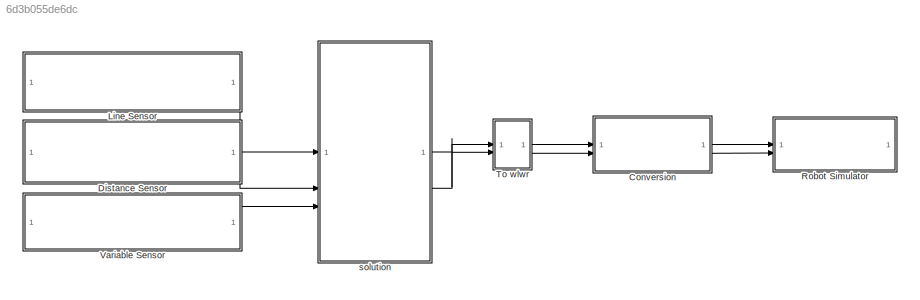
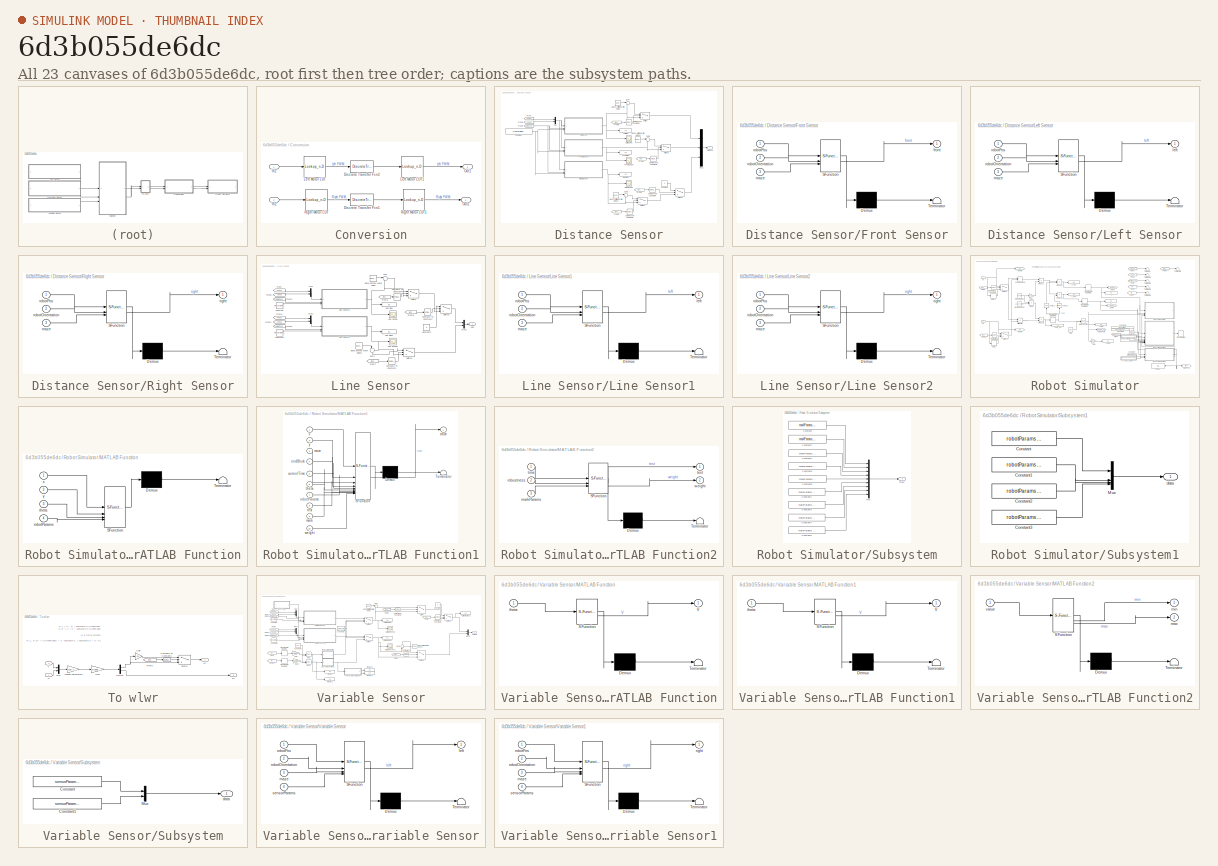
[diagram: thumbnail index - all 23 canvases of the model, root first then tree order]
MODEL slx_6d3b055de6dc
KIND model
CONFIG AbsTol = auto
CONFIG EnableMultiTasking = off
CONFIG FixedStep = 0.01
CONFIG MaxStep = auto
CONFIG MinStep = auto
CONFIG RelTol = 1e-3
CONFIG SampleTimeConstraint = Unconstrained
CONFIG SolverName = FixedStepDiscrete
CONFIG StartTime = 0.0
CONFIG StopTime = inf
BLOCK [SubSystem] Conversion
BLOCK [DiscreteTransferFcn] Conversion/Discrete Transfer Fcn1
  Denominator = [1 -0.97]
  InputPortMap = u0
  Numerator = [0.03]
BLOCK [DiscreteTransferFcn] Conversion/Discrete Transfer Fcn2
  Denominator = [1 -0.97]
  InputPortMap = u0
  Numerator = [0.03]
BLOCK [Inport] Conversion/In1
BLOCK [Inport] Conversion/In2
  Port = 2
BLOCK [Lookup_n-D] Conversion/Left Motor LUT
  BreakpointsForDimension1 = WheelSpeed
  ExtrapMethod = Clip
  InputPortMap = u0
  InternalRulePriority = Speed
  InterpMethod = Nearest
  NumberOfTableDimensions = 1
  RndMeth = Simplest
  Table = InputPWM
BLOCK [Lookup_n-D] Conversion/Left Motor LUT1
  BreakpointsForDimension1 = InputPWM
  ExtrapMethod = Clip
  InputPortMap = u0
  InternalRulePriority = Speed
  InterpMethod = Nearest
  NumberOfTableDimensions = 1
  RndMeth = Simplest
  Table = WheelSpeed
BLOCK [Outport] Conversion/Out1
BLOCK [Outport] Conversion/Out2
  Port = 2
BLOCK [Lookup_n-D] Conversion/Right Motor LUT
  BreakpointsForDimension1 = WheelSpeed
  ExtrapMethod = Clip
  InputPortMap = u0
  InternalRulePriority = Speed
  InterpMethod = Nearest
  NumberOfTableDimensions = 1
  RndMeth = Simplest
  Table = InputPWM
BLOCK [Lookup_n-D] Conversion/Right Motor LUT1
  BreakpointsForDimension1 = InputPWM
  ExtrapMethod = Clip
  InputPortMap = u0
  InternalRulePriority = Speed
  InterpMethod = Nearest
  NumberOfTableDimensions = 1
  RndMeth = Simplest
  Table = WheelSpeed
BLOCK [SubSystem] Distance Sensor
  AncestorBlock = mobileRoboticsTrainingLib/Line Sensor
BLOCK [Reference] Distance Sensor/Band-Limited White Noise  REF=simulink/Sources/Band-Limited
White Noise
  SourceBlock = simulink/Sources/Band-Limited\nWhite Noise
  SourceType = Band-Limited White Noise.
BLOCK [Reference] Distance Sensor/Band-Limited White Noise1  REF=simulink/Sources/Band-Limited
White Noise
  SourceBlock = simulink/Sources/Band-Limited\nWhite Noise
  SourceType = Band-Limited White Noise.
BLOCK [Reference] Distance Sensor/Band-Limited White Noise2  REF=simulink/Sources/Band-Limited
White Noise
  SourceBlock = simulink/Sources/Band-Limited\nWhite Noise
  SourceType = Band-Limited White Noise.
BLOCK [Reference] Distance Sensor/Compare To Constant1  REF=simulink/Logic and Bit
Operations/Compare
To Constant
  SourceBlock = simulink/Logic and Bit\nOperations/Compare\nTo Constant
  SourceType = Compare To Constant
BLOCK [Reference] Distance Sensor/Compare To Constant2  REF=simulink/Logic and Bit
Operations/Compare
To Constant
  SourceBlock = simulink/Logic and Bit\nOperations/Compare\nTo Constant
  SourceType = Compare To Constant
BLOCK [Reference] Distance Sensor/Compare To Constant3  REF=simulink/Logic and Bit
Operations/Compare
To Constant
  SourceBlock = simulink/Logic and Bit\nOperations/Compare\nTo Constant
  SourceType = Compare To Constant
BLOCK [Reference] Distance Sensor/Compare To Constant4  REF=simulink/Logic and Bit
Operations/Compare
To Constant
  SourceBlock = simulink/Logic and Bit\nOperations/Compare\nTo Constant
  SourceType = Compare To Constant
BLOCK [Constant] Distance Sensor/Constant
  Value = mapVariable.lineFollowingMap
BLOCK [Constant] Distance Sensor/Constant1
  Value = 0
BLOCK [Outport] Distance Sensor/Distance
BLOCK [From] Distance Sensor/From
  GotoTag = xPose
  TagVisibility = global
BLOCK [From] Distance Sensor/From1
  GotoTag = yPose
  TagVisibility = global
BLOCK [From] Distance Sensor/From2
  GotoTag = thetaPose
  TagVisibility = global
BLOCK [From] Distance Sensor/From3
  GotoTag = test
  TagVisibility = global
BLOCK [From] Distance Sensor/From4
  GotoTag = test
  TagVisibility = global
BLOCK [From] Distance Sensor/From5
  GotoTag = test
  TagVisibility = global
BLOCK [From] Distance Sensor/From6
  GotoTag = test
  TagVisibility = global
BLOCK [Display] Distance Sensor/Front Disp
  Decimation = 1
BLOCK [Scope] Distance Sensor/Front Scope
  Floating = off
  NumInputPorts = 1
  ScopeSpecificationString = Simulink.scopes.TimeScopeBlockCfg('CurrentConfiguration', extmgr.ConfigurationSet(extmgr.Configuration('Core','General UI',true),extmgr.Configuration('Core','Source UI',true),extmgr.Configuration('Sources','WiredSimulink',true,'DataLoggingVariableName','ScopeData1'),extmgr.Configuration('Visuals','Time Domain',true,'SerializedDisplays',{struct('MinYLimReal','11.82933','MaxYLimReal','1442.24519','Y...<+1499ch>
BLOCK [SubSystem] Distance Sensor/Front Sensor
  ErrorFcn = Stateflow.Translate.translate
  PermitHierarchicalResolution = ExplicitOnly
  SFBlockType = MATLAB Function
  TreatAsAtomicUnit = on
BLOCK [Demux] Distance Sensor/Front Sensor/ Demux 
  Outputs = 1
BLOCK [S-Function] Distance Sensor/Front Sensor/ SFunction 
  EnableBusSupport = on
  FunctionName = sf_sfun
  PortCounts = [3 2]
  SFcnIsStateOwnerBlock = off
  SFunctionDeploymentMode = off
  Tag = Stateflow S-Function 3
BLOCK [Terminator] Distance Sensor/Front Sensor/ Terminator 
BLOCK [Outport] Distance Sensor/Front Sensor/front
BLOCK [Inport] Distance Sensor/Front Sensor/maze
  Port = 3
BLOCK [Inport] Distance Sensor/Front Sensor/robotOrientation
  Port = 2
BLOCK [Inport] Distance Sensor/Front Sensor/robotPos
BLOCK [Display] Distance Sensor/Left Disp
  Decimation = 1
BLOCK [Scope] Distance Sensor/Left Scope
  Floating = off
  NumInputPorts = 1
  ScopeSpecificationString = Simulink.scopes.TimeScopeBlockCfg('CurrentConfiguration', extmgr.ConfigurationSet(extmgr.Configuration('Core','General UI',true),extmgr.Configuration('Core','Source UI',true),extmgr.Configuration('Sources','WiredSimulink',true),extmgr.Configuration('Visuals','Time Domain',true,'SerializedDisplays',{struct('MinYLimReal','12.22905','MaxYLimReal','111.97455','YLabelReal','','MinYLimMag','12.22905','M...<+1457ch>
BLOCK [SubSystem] Distance Sensor/Left Sensor
  ErrorFcn = Stateflow.Translate.translate
  PermitHierarchicalResolution = ExplicitOnly
  SFBlockType = MATLAB Function
  TreatAsAtomicUnit = on
BLOCK [Demux] Distance Sensor/Left Sensor/ Demux 
  Outputs = 1
BLOCK [S-Function] Distance Sensor/Left Sensor/ SFunction 
  EnableBusSupport = on
  FunctionName = sf_sfun
  PortCounts = [3 2]
  SFcnIsStateOwnerBlock = off
  SFunctionDeploymentMode = off
  Tag = Stateflow S-Function 2
BLOCK [Terminator] Distance Sensor/Left Sensor/ Terminator 
BLOCK [Outport] Distance Sensor/Left Sensor/left
BLOCK [Inport] Distance Sensor/Left Sensor/maze
  Port = 3
BLOCK [Inport] Distance Sensor/Left Sensor/robotOrientation
  Port = 2
BLOCK [Inport] Distance Sensor/Left Sensor/robotPos
BLOCK [Mux] Distance Sensor/Mux
  DisplayOption = bar
  Inputs = 2
BLOCK [Mux] Distance Sensor/Mux1
  DisplayOption = bar
  Inputs = 3
BLOCK [Display] Distance Sensor/Right Disp
  Decimation = 1
BLOCK [Scope] Distance Sensor/Right Scope
  Floating = off
  NumInputPorts = 1
  ScopeSpecificationString = Simulink.scopes.TimeScopeBlockCfg('CurrentConfiguration', extmgr.ConfigurationSet(extmgr.Configuration('Core','General UI',true),extmgr.Configuration('Core','Source UI',true),extmgr.Configuration('Sources','WiredSimulink',true,'DataLoggingVariableName','ScopeData2'),extmgr.Configuration('Visuals','Time Domain',true,'SerializedDisplays',{struct('MinYLimReal','10.84852','MaxYLimReal','872.36328','YL...<+1497ch>
BLOCK [SubSystem] Distance Sensor/Right Sensor
  ErrorFcn = Stateflow.Translate.translate
  PermitHierarchicalResolution = ExplicitOnly
  SFBlockType = MATLAB Function
  TreatAsAtomicUnit = on
BLOCK [Demux] Distance Sensor/Right Sensor/ Demux 
  Outputs = 1
BLOCK [S-Function] Distance Sensor/Right Sensor/ SFunction 
  EnableBusSupport = on
  FunctionName = sf_sfun
  PortCounts = [3 2]
  SFcnIsStateOwnerBlock = off
  SFunctionDeploymentMode = off
  Tag = Stateflow S-Function 4
BLOCK [Terminator] Distance Sensor/Right Sensor/ Terminator 
BLOCK [Inport] Distance Sensor/Right Sensor/maze
  Port = 3
BLOCK [Outport] Distance Sensor/Right Sensor/right
BLOCK [Inport] Distance Sensor/Right Sensor/robotOrientation
  Port = 2
BLOCK [Inport] Distance Sensor/Right Sensor/robotPos
BLOCK [Sum] Distance Sensor/Sum
  Inputs = |++
BLOCK [Sum] Distance Sensor/Sum1
  Inputs = |++
BLOCK [Sum] Distance Sensor/Sum2
  Inputs = |++
BLOCK [Switch] Distance Sensor/Switch
  InputSameDT = off
  SaturateOnIntegerOverflow = off
  Threshold = 1
BLOCK [Switch] Distance Sensor/Switch1
  InputSameDT = off
  SaturateOnIntegerOverflow = off
  Threshold = 1
BLOCK [Switch] Distance Sensor/Switch2
  InputSameDT = off
  SaturateOnIntegerOverflow = off
  Threshold = 2
BLOCK [Switch] Distance Sensor/Switch3
  InputSameDT = off
  SaturateOnIntegerOverflow = off
  Threshold = 1
BLOCK [SubSystem] Line Sensor
  AncestorBlock = mobileRoboticsTrainingLib/Line Sensor
BLOCK [Reference] Line Sensor/Band-Limited White Noise  REF=simulink/Sources/Band-Limited
White Noise
  SourceBlock = simulink/Sources/Band-Limited\nWhite Noise
  SourceType = Band-Limited White Noise.
BLOCK [Reference] Line Sensor/Band-Limited White Noise1  REF=simulink/Sources/Band-Limited
White Noise
  SourceBlock = simulink/Sources/Band-Limited\nWhite Noise
  SourceType = Band-Limited White Noise.
BLOCK [Reference] Line Sensor/Compare To Constant  REF=simulink/Logic and Bit
Operations/Compare
To Constant
  SourceBlock = simulink/Logic and Bit\nOperations/Compare\nTo Constant
  SourceType = Compare To Constant
BLOCK [Reference] Line Sensor/Compare To Constant1  REF=simulink/Logic and Bit
Operations/Compare
To Constant
  SourceBlock = simulink/Logic and Bit\nOperations/Compare\nTo Constant
  SourceType = Compare To Constant
BLOCK [Reference] Line Sensor/Compare To Constant2  REF=simulink/Logic and Bit
Operations/Compare
To Constant
  SourceBlock = simulink/Logic and Bit\nOperations/Compare\nTo Constant
  SourceType = Compare To Constant
BLOCK [Constant] Line Sensor/Constant
  Value = mapVariable.lineFollowingMap
BLOCK [Constant] Line Sensor/Constant1
  Value = mapVariable.lineFollowingMap
BLOCK [Constant] Line Sensor/Constant2
  Value = 0
BLOCK [From] Line Sensor/From
  GotoTag = xPose
  TagVisibility = global
BLOCK [From] Line Sensor/From1
  GotoTag = yPose
  TagVisibility = global
BLOCK [From] Line Sensor/From2
  GotoTag = thetaPose
  TagVisibility = global
BLOCK [From] Line Sensor/From3
  GotoTag = xPose
  TagVisibility = global
BLOCK [From] Line Sensor/From4
  GotoTag = yPose
  TagVisibility = global
BLOCK [From] Line Sensor/From5
  GotoTag = thetaPose
  TagVisibility = global
BLOCK [From] Line Sensor/From6
  GotoTag = test
  TagVisibility = global
BLOCK [From] Line Sensor/From7
  GotoTag = test
  TagVisibility = global
BLOCK [From] Line Sensor/From8
  GotoTag = test
  TagVisibility = global
BLOCK [Outport] Line Sensor/Line
BLOCK [Display] Line Sensor/Line Disp
  Decimation = 1
BLOCK [Display] Line Sensor/Line Disp1
  Decimation = 1
BLOCK [Scope] Line Sensor/Line Scope
  Floating = off
  NumInputPorts = 1
  ScopeSpecificationString = Simulink.scopes.TimeScopeBlockCfg('CurrentConfiguration', extmgr.ConfigurationSet(extmgr.Configuration('Core','General UI',true),extmgr.Configuration('Core','Source UI',true),extmgr.Configuration('Sources','WiredSimulink',true,'DataLoggingVariableName','ScopeData1'),extmgr.Configuration('Visuals','Time Domain',true,'SerializedDisplays',{struct('MinYLimReal','12.22905','MaxYLimReal','111.97455','YL...<+1496ch>  <repeated x3 — deduplicated; at blocks: Line Scope, Line Scope1, Variable Scope1>
BLOCK [Scope] Line Sensor/Line Scope1
  Floating = off
  NumInputPorts = 1
BLOCK [SubSystem] Line Sensor/Line Sensor1
  ErrorFcn = Stateflow.Translate.translate
  PermitHierarchicalResolution = ExplicitOnly
  SFBlockType = MATLAB Function
  TreatAsAtomicUnit = on
BLOCK [Demux] Line Sensor/Line Sensor1/ Demux 
  Outputs = 1
BLOCK [S-Function] Line Sensor/Line Sensor1/ SFunction 
  EnableBusSupport = on
  FunctionName = sf_sfun
  PortCounts = [3 2]
  SFcnIsStateOwnerBlock = off
  SFunctionDeploymentMode = off
  Tag = Stateflow S-Function 5
BLOCK [Terminator] Line Sensor/Line Sensor1/ Terminator 
BLOCK [Outport] Line Sensor/Line Sensor1/left
BLOCK [Inport] Line Sensor/Line Sensor1/maze
  Port = 3
BLOCK [Inport] Line Sensor/Line Sensor1/robotOrientation
  Port = 2
BLOCK [Inport] Line Sensor/Line Sensor1/robotPos
BLOCK [SubSystem] Line Sensor/Line Sensor2
  ErrorFcn = Stateflow.Translate.translate
  PermitHierarchicalResolution = ExplicitOnly
  SFBlockType = MATLAB Function
  TreatAsAtomicUnit = on
BLOCK [Demux] Line Sensor/Line Sensor2/ Demux 
  Outputs = 1
BLOCK [S-Function] Line Sensor/Line Sensor2/ SFunction 
  EnableBusSupport = on
  FunctionName = sf_sfun
  PortCounts = [3 2]
  SFcnIsStateOwnerBlock = off
  SFunctionDeploymentMode = off
  Tag = Stateflow S-Function 8
BLOCK [Terminator] Line Sensor/Line Sensor2/ Terminator 
BLOCK [Inport] Line Sensor/Line Sensor2/maze
  Port = 3
BLOCK [Outport] Line Sensor/Line Sensor2/right
BLOCK [Inport] Line Sensor/Line Sensor2/robotOrientation
  Port = 2
BLOCK [Inport] Line Sensor/Line Sensor2/robotPos
BLOCK [Mux] Line Sensor/Mux
  DisplayOption = bar
  Inputs = 2
BLOCK [Mux] Line Sensor/Mux1
  DisplayOption = bar
  Inputs = 2
BLOCK [Mux] Line Sensor/Mux2
  DisplayOption = bar
  Inputs = 2
BLOCK [Sum] Line Sensor/Sum
  Inputs = |++
BLOCK [Sum] Line Sensor/Sum1
  Inputs = |++
  NameLocation = left
BLOCK [Switch] Line Sensor/Switch
  InputSameDT = off
  SaturateOnIntegerOverflow = off
  Threshold = 1
BLOCK [Switch] Line Sensor/Switch1
  InputSameDT = off
  SaturateOnIntegerOverflow = off
  Threshold = 1
BLOCK [Switch] Line Sensor/Switch2
  InputSameDT = off
  SaturateOnIntegerOverflow = off
  Threshold = 1
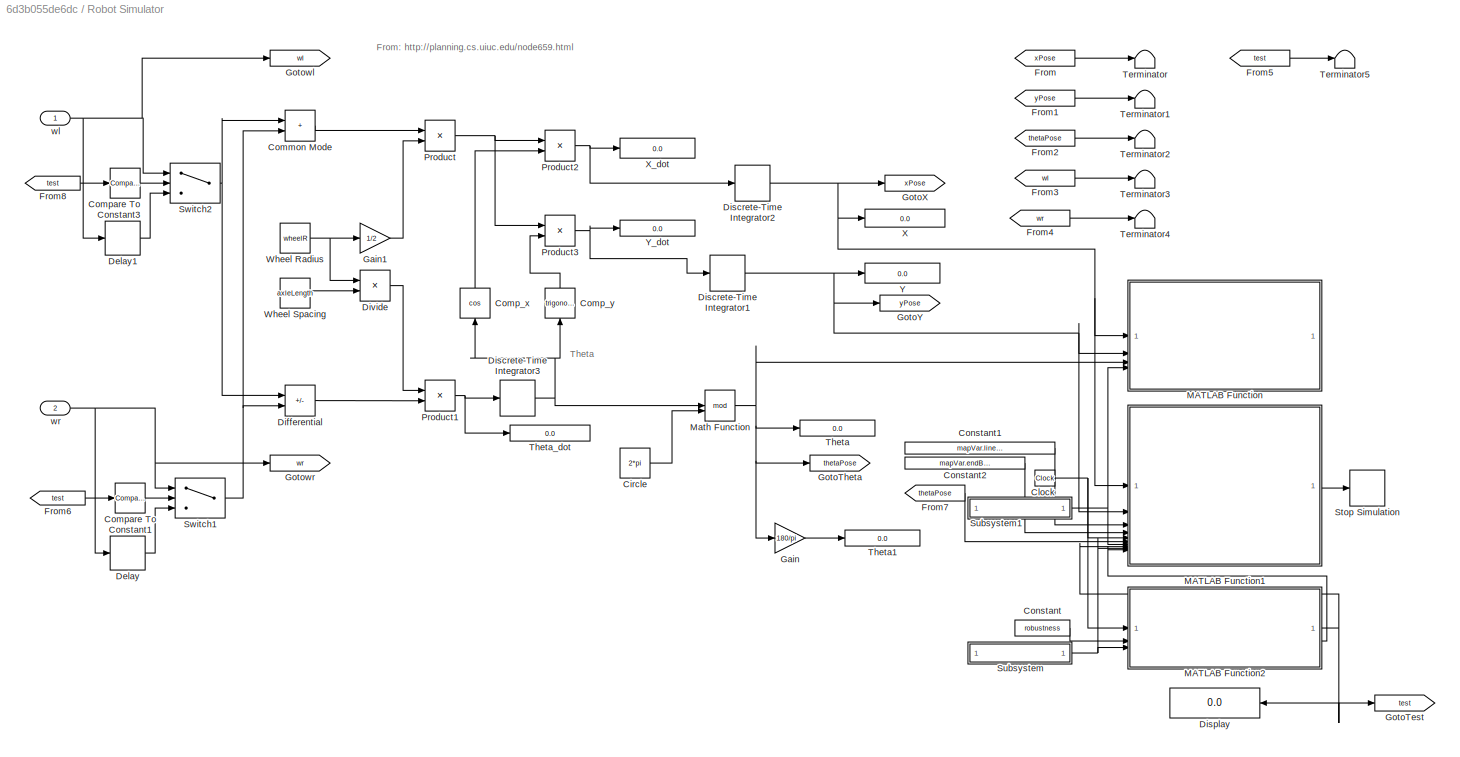
BLOCK [SubSystem] Robot Simulator
  AncestorBlock = mobileRoboticsTrainingLib/Robot Simulator
  Priority = 99
BLOCK [Constant] Robot Simulator/Circle
  Value = 2*pi
BLOCK [Clock] Robot Simulator/Clock
BLOCK [Sum] Robot Simulator/Common Mode
  IconShape = rectangular
BLOCK [Trigonometry] Robot Simulator/Comp_x
  NameLocation = right
  Operator = cos
BLOCK [Trigonometry] Robot Simulator/Comp_y
  NameLocation = right
BLOCK [Reference] Robot Simulator/Compare To Constant1  REF=simulink/Logic and Bit
Operations/Compare
To Constant
  SourceBlock = simulink/Logic and Bit\nOperations/Compare\nTo Constant
  SourceType = Compare To Constant
BLOCK [Reference] Robot Simulator/Compare To Constant3  REF=simulink/Logic and Bit
Operations/Compare
To Constant
  SourceBlock = simulink/Logic and Bit\nOperations/Compare\nTo Constant
  SourceType = Compare To Constant
BLOCK [Constant] Robot Simulator/Constant
  Value = robustness
BLOCK [Constant] Robot Simulator/Constant1
  Value = mapVar.lineFollowingMap
BLOCK [Constant] Robot Simulator/Constant2
  Value = mapVar.endBlock
BLOCK [Delay] Robot Simulator/Delay
  DelayLength = 20
  InputPortMap = u0
BLOCK [Delay] Robot Simulator/Delay1
  DelayLength = 20
  InputPortMap = u0
BLOCK [Sum] Robot Simulator/Differential
  IconShape = rectangular
  Inputs = -+
BLOCK [DiscreteIntegrator] Robot Simulator/Discrete-Time Integrator1
  ICPrevOutput = DiscIntNeverNeededParam
  ICPrevScaledInput = DiscIntNeverNeededParam
  InitialCondition = startY
  InitialConditionSetting = Auto
  SampleTime = -1
BLOCK [DiscreteIntegrator] Robot Simulator/Discrete-Time Integrator2
  ICPrevOutput = DiscIntNeverNeededParam
  ICPrevScaledInput = DiscIntNeverNeededParam
  InitialCondition = startX
  InitialConditionSetting = Auto
  SampleTime = -1
BLOCK [DiscreteIntegrator] Robot Simulator/Discrete-Time Integrator3
  ICPrevOutput = DiscIntNeverNeededParam
  ICPrevScaledInput = DiscIntNeverNeededParam
  InitialCondition = startTheta
  InitialConditionSetting = Auto
  SampleTime = -1
BLOCK [Display] Robot Simulator/Display
  Decimation = 1
BLOCK [Product] Robot Simulator/Divide
  Inputs = */
BLOCK [From] Robot Simulator/From
  GotoTag = xPose
  TagVisibility = global
BLOCK [From] Robot Simulator/From1
  GotoTag = yPose
  TagVisibility = global
BLOCK [From] Robot Simulator/From2
  GotoTag = thetaPose
  TagVisibility = global
BLOCK [From] Robot Simulator/From3
  GotoTag = wl
  TagVisibility = global
BLOCK [From] Robot Simulator/From4
  GotoTag = wr
  TagVisibility = global
BLOCK [From] Robot Simulator/From5
  GotoTag = test
  TagVisibility = global
BLOCK [From] Robot Simulator/From6
  GotoTag = test
  TagVisibility = global
BLOCK [From] Robot Simulator/From7
  GotoTag = thetaPose
  TagVisibility = global
BLOCK [From] Robot Simulator/From8
  GotoTag = test
  TagVisibility = global
BLOCK [Gain] Robot Simulator/Gain
  Gain = 180/pi
BLOCK [Gain] Robot Simulator/Gain1
  Gain = 1/2
BLOCK [Goto] Robot Simulator/GotoTest
  GotoTag = test
  TagVisibility = global
BLOCK [Goto] Robot Simulator/GotoTheta
  GotoTag = thetaPose
  TagVisibility = global
BLOCK [Goto] Robot Simulator/GotoX
  GotoTag = xPose
  TagVisibility = global
BLOCK [Goto] Robot Simulator/GotoY
  GotoTag = yPose
  TagVisibility = global
BLOCK [Goto] Robot Simulator/Gotowl
  GotoTag = wl
  TagVisibility = global
BLOCK [Goto] Robot Simulator/Gotowr
  GotoTag = wr
  TagVisibility = global
BLOCK [SubSystem] Robot Simulator/MATLAB Function
  ErrorFcn = Stateflow.Translate.translate
  PermitHierarchicalResolution = ExplicitOnly
  SFBlockType = MATLAB Function
  TreatAsAtomicUnit = on
BLOCK [Demux] Robot Simulator/MATLAB Function/ Demux 
  Outputs = 1
BLOCK [S-Function] Robot Simulator/MATLAB Function/ SFunction 
  EnableBusSupport = on
  FunctionName = sf_sfun
  PortCounts = [4 1]
  SFcnIsStateOwnerBlock = off
  SFunctionDeploymentMode = off
  Tag = Stateflow S-Function 1
BLOCK [Terminator] Robot Simulator/MATLAB Function/ Terminator 
BLOCK [Inport] Robot Simulator/MATLAB Function/robotParams
  Port = 4
BLOCK [Inport] Robot Simulator/MATLAB Function/theta
  Port = 3
BLOCK [Inport] Robot Simulator/MATLAB Function/x
BLOCK [Inport] Robot Simulator/MATLAB Function/y
  Port = 2
BLOCK [SubSystem] Robot Simulator/MATLAB Function1
  ErrorFcn = Stateflow.Translate.translate
  PermitHierarchicalResolution = ExplicitOnly
  SFBlockType = MATLAB Function
  TreatAsAtomicUnit = on
BLOCK [Demux] Robot Simulator/MATLAB Function1/ Demux 
  Outputs = 1
BLOCK [S-Function] Robot Simulator/MATLAB Function1/ SFunction 
  EnableBusSupport = on
  FunctionName = sf_sfun
  PortCounts = [10 2]
  SFcnIsStateOwnerBlock = off
  SFunctionDeploymentMode = off
  Tag = Stateflow S-Function 10
BLOCK [Terminator] Robot Simulator/MATLAB Function1/ Terminator 
BLOCK [Outport] Robot Simulator/MATLAB Function1/crash
BLOCK [Inport] Robot Simulator/MATLAB Function1/currentTime
  Port = 5
BLOCK [Inport] Robot Simulator/MATLAB Function1/endBlock
  Port = 4
BLOCK [Inport] Robot Simulator/MATLAB Function1/mark
  Port = 9
BLOCK [Inport] Robot Simulator/MATLAB Function1/maze
  Port = 3
BLOCK [Inport] Robot Simulator/MATLAB Function1/robotParams
  Port = 7
BLOCK [Inport] Robot Simulator/MATLAB Function1/test
  Port = 8
BLOCK [Inport] Robot Simulator/MATLAB Function1/theta
  Port = 6
BLOCK [Inport] Robot Simulator/MATLAB Function1/weight
  Port = 10
BLOCK [Inport] Robot Simulator/MATLAB Function1/x
BLOCK [Inport] Robot Simulator/MATLAB Function1/y
  Port = 2
BLOCK [SubSystem] Robot Simulator/MATLAB Function2
  ErrorFcn = Stateflow.Translate.translate
  PermitHierarchicalResolution = ExplicitOnly
  SFBlockType = MATLAB Function
  TreatAsAtomicUnit = on
BLOCK [Demux] Robot Simulator/MATLAB Function2/ Demux 
  Outputs = 1
BLOCK [S-Function] Robot Simulator/MATLAB Function2/ SFunction 
  EnableBusSupport = on
  FunctionName = sf_sfun
  PortCounts = [3 3]
  SFcnIsStateOwnerBlock = off
  SFunctionDeploymentMode = off
  Tag = Stateflow S-Function 11
BLOCK [Terminator] Robot Simulator/MATLAB Function2/ Terminator 
BLOCK [Inport] Robot Simulator/MATLAB Function2/markParams
  Port = 3
BLOCK [Inport] Robot Simulator/MATLAB Function2/robustness
  Port = 2
BLOCK [Outport] Robot Simulator/MATLAB Function2/test
BLOCK [Inport] Robot Simulator/MATLAB Function2/time
BLOCK [Outport] Robot Simulator/MATLAB Function2/weight
  Port = 2
BLOCK [Math] Robot Simulator/Math Function
  Operator = mod
  SignedPower = on
BLOCK [Product] Robot Simulator/Product
  RndMeth = Zero
BLOCK [Product] Robot Simulator/Product1
  RndMeth = Zero
BLOCK [Product] Robot Simulator/Product2
  RndMeth = Zero
BLOCK [Product] Robot Simulator/Product3
  RndMeth = Zero
BLOCK [Stop] Robot Simulator/Stop Simulation
BLOCK [SubSystem] Robot Simulator/Subsystem
BLOCK [Constant] Robot Simulator/Subsystem/Constant
  Value = markParams.sm_sen_noise_line
BLOCK [Constant] Robot Simulator/Subsystem/Constant1
  Value = markParams.sm_sen_fail_line
BLOCK [Constant] Robot Simulator/Subsystem/Constant2
  Value = markParams.sm_sen_drift
BLOCK [Constant] Robot Simulator/Subsystem/Constant3
  Value = markParams.sm_com_delay
BLOCK [Constant] Robot Simulator/Subsystem/Constant4
  Value = markParams.sm_whe_slip
BLOCK [Constant] Robot Simulator/Subsystem/Constant5
  Value = markParams.sm_sen_fail_dist
BLOCK [Constant] Robot Simulator/Subsystem/Constant6
  Value = markParams.maxTime
BLOCK [Constant] Robot Simulator/Subsystem/Constant7
  Value = markParams.sm_sen_noise_dist
BLOCK [Constant] Robot Simulator/Subsystem/Constant8
  Value = markParams.sm_sen_fail_dist
BLOCK [Mux] Robot Simulator/Subsystem/Mux
  DisplayOption = bar
  Inputs = 9
BLOCK [Outport] Robot Simulator/Subsystem/mark
BLOCK [SubSystem] Robot Simulator/Subsystem1
BLOCK [Constant] Robot Simulator/Subsystem1/Constant
  Value = robotParams.length
BLOCK [Constant] Robot Simulator/Subsystem1/Constant1
  Value = robotParams.width
BLOCK [Constant] Robot Simulator/Subsystem1/Constant2
  Value = robotParams.axle_to_front
BLOCK [Constant] Robot Simulator/Subsystem1/Constant3
  Value = robotParams.axle_to_centre
BLOCK [Mux] Robot Simulator/Subsystem1/Mux
  DisplayOption = bar
BLOCK [Outport] Robot Simulator/Subsystem1/data
BLOCK [Switch] Robot Simulator/Switch1
  InputSameDT = off
  SaturateOnIntegerOverflow = off
  Threshold = 1
BLOCK [Switch] Robot Simulator/Switch2
  InputSameDT = off
  SaturateOnIntegerOverflow = off
  Threshold = 1
BLOCK [Terminator] Robot Simulator/Terminator
BLOCK [Terminator] Robot Simulator/Terminator1
BLOCK [Terminator] Robot Simulator/Terminator2
BLOCK [Terminator] Robot Simulator/Terminator3
BLOCK [Terminator] Robot Simulator/Terminator4
BLOCK [Terminator] Robot Simulator/Terminator5
BLOCK [Display] Robot Simulator/Theta
  Decimation = 1
BLOCK [Display] Robot Simulator/Theta1
  Decimation = 1
BLOCK [Display] Robot Simulator/Theta_dot
  Decimation = 1
BLOCK [Constant] Robot Simulator/Wheel Radius
  Value = wheelR
BLOCK [Constant] Robot Simulator/Wheel Spacing
  Value = axleLength
BLOCK [Display] Robot Simulator/X
  Decimation = 1
BLOCK [Display] Robot Simulator/X_dot
  Decimation = 1
BLOCK [Display] Robot Simulator/Y
  Decimation = 1
BLOCK [Display] Robot Simulator/Y_dot
  Decimation = 1
BLOCK [Inport] Robot Simulator/wl
BLOCK [Inport] Robot Simulator/wr
  Port = 2
BLOCK [SubSystem] To wlwr
  AncestorBlock = mobileRoboticsTrainingLib/To wlwr
BLOCK [Reference] To wlwr/Compare To Constant1  REF=simulink/Logic and Bit
Operations/Compare
To Constant
  SourceBlock = simulink/Logic and Bit\nOperations/Compare\nTo Constant
  SourceType = Compare To Constant
BLOCK [Demux] To wlwr/Demux
  Outputs = 2
BLOCK [From] To wlwr/From6
  GotoTag = test
  TagVisibility = global
BLOCK [Gain] To wlwr/Gain
  Gain = 0.9
BLOCK [Mux] To wlwr/Mux
  DisplayOption = bar
  Inputs = 2
BLOCK [Switch] To wlwr/Switch
  InputSameDT = off
  SaturateOnIntegerOverflow = off
  Threshold = 1
BLOCK [Gain] To wlwr/change parameters
  Gain = [100 -robotParams.axleLength/2;100 robotParams.axleLength/2]
  Multiplication = Matrix(K*u)
BLOCK [Inport] To wlwr/v
BLOCK [Gain] To wlwr/vtow
  Gain = 1/robotParams.wheelR
  Multiplication = Matrix(K*u)
BLOCK [Inport] To wlwr/w
  Port = 2
BLOCK [Outport] To wlwr/wl
BLOCK [Outport] To wlwr/wr
  Port = 2
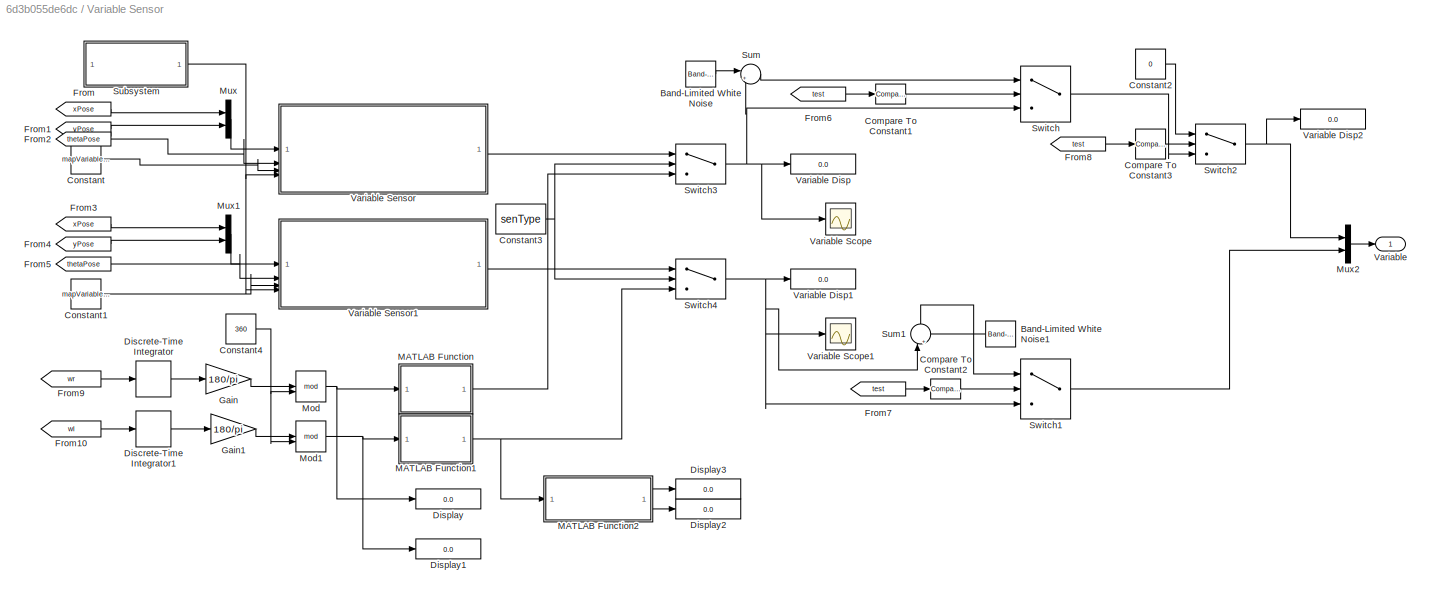
BLOCK [SubSystem] Variable Sensor
  AncestorBlock = mobileRoboticsTrainingLib/Line Sensor
BLOCK [Reference] Variable Sensor/Band-Limited White Noise  REF=simulink/Sources/Band-Limited
White Noise
  SourceBlock = simulink/Sources/Band-Limited\nWhite Noise
  SourceType = Band-Limited White Noise.
BLOCK [Reference] Variable Sensor/Band-Limited White Noise1  REF=simulink/Sources/Band-Limited
White Noise
  SourceBlock = simulink/Sources/Band-Limited\nWhite Noise
  SourceType = Band-Limited White Noise.
BLOCK [Reference] Variable Sensor/Compare To Constant1  REF=simulink/Logic and Bit
Operations/Compare
To Constant
  SourceBlock = simulink/Logic and Bit\nOperations/Compare\nTo Constant
  SourceType = Compare To Constant
BLOCK [Reference] Variable Sensor/Compare To Constant2  REF=simulink/Logic and Bit
Operations/Compare
To Constant
  SourceBlock = simulink/Logic and Bit\nOperations/Compare\nTo Constant
  SourceType = Compare To Constant
BLOCK [Reference] Variable Sensor/Compare To Constant3  REF=simulink/Logic and Bit
Operations/Compare
To Constant
  SourceBlock = simulink/Logic and Bit\nOperations/Compare\nTo Constant
  SourceType = Compare To Constant
BLOCK [Constant] Variable Sensor/Constant
  Value = mapVariable.lineFollowingMap
BLOCK [Constant] Variable Sensor/Constant1
  Value = mapVariable.lineFollowingMap
BLOCK [Constant] Variable Sensor/Constant2
  Value = 0
BLOCK [Constant] Variable Sensor/Constant3
  Value = senType
BLOCK [Constant] Variable Sensor/Constant4
  Value = 360
BLOCK [DiscreteIntegrator] Variable Sensor/Discrete-Time Integrator
  ICPrevOutput = DiscIntNeverNeededParam
  ICPrevScaledInput = DiscIntNeverNeededParam
  InitialConditionSetting = Auto
  SampleTime = -1
BLOCK [DiscreteIntegrator] Variable Sensor/Discrete-Time Integrator1
  ICPrevOutput = DiscIntNeverNeededParam
  ICPrevScaledInput = DiscIntNeverNeededParam
  InitialConditionSetting = Auto
  SampleTime = -1
BLOCK [Display] Variable Sensor/Display
  Decimation = 1
BLOCK [Display] Variable Sensor/Display1
  Decimation = 1
BLOCK [Display] Variable Sensor/Display2
  Decimation = 1
BLOCK [Display] Variable Sensor/Display3
  Decimation = 1
BLOCK [From] Variable Sensor/From
  GotoTag = xPose
  TagVisibility = global
BLOCK [From] Variable Sensor/From1
  GotoTag = yPose
  TagVisibility = global
BLOCK [From] Variable Sensor/From10
  GotoTag = wl
  TagVisibility = global
BLOCK [From] Variable Sensor/From2
  GotoTag = thetaPose
  TagVisibility = global
BLOCK [From] Variable Sensor/From3
  GotoTag = xPose
  TagVisibility = global
BLOCK [From] Variable Sensor/From4
  GotoTag = yPose
  TagVisibility = global
BLOCK [From] Variable Sensor/From5
  GotoTag = thetaPose
  TagVisibility = global
BLOCK [From] Variable Sensor/From6
  GotoTag = test
  TagVisibility = global
BLOCK [From] Variable Sensor/From7
  GotoTag = test
  TagVisibility = global
BLOCK [From] Variable Sensor/From8
  GotoTag = test
  TagVisibility = global
BLOCK [From] Variable Sensor/From9
  GotoTag = wr
  TagVisibility = global
BLOCK [Gain] Variable Sensor/Gain
  Gain = 180/pi
BLOCK [Gain] Variable Sensor/Gain1
  Gain = 180/pi
BLOCK [SubSystem] Variable Sensor/MATLAB Function
  ErrorFcn = Stateflow.Translate.translate
  PermitHierarchicalResolution = ExplicitOnly
  SFBlockType = MATLAB Function
  TreatAsAtomicUnit = on
BLOCK [Demux] Variable Sensor/MATLAB Function/ Demux 
  Outputs = 1
BLOCK [S-Function] Variable Sensor/MATLAB Function/ SFunction 
  EnableBusSupport = on
  FunctionName = sf_sfun
  PortCounts = [1 2]
  SFcnIsStateOwnerBlock = off
  SFunctionDeploymentMode = off
  Tag = Stateflow S-Function 12
BLOCK [Terminator] Variable Sensor/MATLAB Function/ Terminator 
BLOCK [Outport] Variable Sensor/MATLAB Function/V
BLOCK [Inport] Variable Sensor/MATLAB Function/theta
BLOCK [SubSystem] Variable Sensor/MATLAB Function1
  ErrorFcn = Stateflow.Translate.translate
  PermitHierarchicalResolution = ExplicitOnly
  SFBlockType = MATLAB Function
  TreatAsAtomicUnit = on
BLOCK [Demux] Variable Sensor/MATLAB Function1/ Demux 
  Outputs = 1
BLOCK [S-Function] Variable Sensor/MATLAB Function1/ SFunction 
  EnableBusSupport = on
  FunctionName = sf_sfun
  PortCounts = [1 2]
  SFcnIsStateOwnerBlock = off
  SFunctionDeploymentMode = off
  Tag = Stateflow S-Function 13
BLOCK [Terminator] Variable Sensor/MATLAB Function1/ Terminator 
BLOCK [Outport] Variable Sensor/MATLAB Function1/V
BLOCK [Inport] Variable Sensor/MATLAB Function1/theta
BLOCK [SubSystem] Variable Sensor/MATLAB Function2
  ErrorFcn = Stateflow.Translate.translate
  PermitHierarchicalResolution = ExplicitOnly
  SFBlockType = MATLAB Function
  TreatAsAtomicUnit = on
BLOCK [Demux] Variable Sensor/MATLAB Function2/ Demux 
  Outputs = 1
BLOCK [S-Function] Variable Sensor/MATLAB Function2/ SFunction 
  EnableBusSupport = on
  FunctionName = sf_sfun
  PortCounts = [1 3]
  SFcnIsStateOwnerBlock = off
  SFunctionDeploymentMode = off
  Tag = Stateflow S-Function 14
BLOCK [Terminator] Variable Sensor/MATLAB Function2/ Terminator 
BLOCK [Outport] Variable Sensor/MATLAB Function2/max
  Port = 2
BLOCK [Outport] Variable Sensor/MATLAB Function2/min
BLOCK [Inport] Variable Sensor/MATLAB Function2/value
BLOCK [Math] Variable Sensor/Mod
  Operator = mod
BLOCK [Math] Variable Sensor/Mod1
  Operator = mod
BLOCK [Mux] Variable Sensor/Mux
  DisplayOption = bar
  Inputs = 2
BLOCK [Mux] Variable Sensor/Mux1
  DisplayOption = bar
  Inputs = 2
BLOCK [Mux] Variable Sensor/Mux2
  DisplayOption = bar
  Inputs = 2
BLOCK [SubSystem] Variable Sensor/Subsystem
BLOCK [Constant] Variable Sensor/Subsystem/Constant
  Value = sensorParams.sen_var_axle
BLOCK [Constant] Variable Sensor/Subsystem/Constant1
  Value = sensorParams.sen_var_left
BLOCK [Mux] Variable Sensor/Subsystem/Mux
  DisplayOption = bar
  Inputs = 2
BLOCK [Outport] Variable Sensor/Subsystem/data
BLOCK [Sum] Variable Sensor/Sum
  Inputs = |++
BLOCK [Sum] Variable Sensor/Sum1
  Inputs = |++
  NameLocation = right
BLOCK [Switch] Variable Sensor/Switch
  InputSameDT = off
  SaturateOnIntegerOverflow = off
  Threshold = 1
BLOCK [Switch] Variable Sensor/Switch1
  InputSameDT = off
  SaturateOnIntegerOverflow = off
  Threshold = 1
BLOCK [Switch] Variable Sensor/Switch2
  InputSameDT = off
  SaturateOnIntegerOverflow = off
  Threshold = 1
BLOCK [Switch] Variable Sensor/Switch3
  Criteria = u2 ~= 0
  InputSameDT = off
  SaturateOnIntegerOverflow = off
BLOCK [Switch] Variable Sensor/Switch4
  Criteria = u2 ~= 0
  InputSameDT = off
  SaturateOnIntegerOverflow = off
BLOCK [Outport] Variable Sensor/Variable
BLOCK [Display] Variable Sensor/Variable Disp
  Decimation = 1
BLOCK [Display] Variable Sensor/Variable Disp1
  Decimation = 1
BLOCK [Display] Variable Sensor/Variable Disp2
  Decimation = 1
BLOCK [Scope] Variable Sensor/Variable Scope
  Floating = off
  NumInputPorts = 1
  ScopeSpecificationString = Simulink.scopes.TimeScopeBlockCfg('CurrentConfiguration', extmgr.ConfigurationSet(extmgr.Configuration('Core','General UI',true),extmgr.Configuration('Core','Source UI',true),extmgr.Configuration('Sources','WiredSimulink',true,'DataLoggingVariableName','ScopeData2'),extmgr.Configuration('Visuals','Time Domain',true,'SerializedDisplays',{struct('MinYLimReal','12.22905','MaxYLimReal','111.97455','YL...<+1496ch>
BLOCK [Scope] Variable Sensor/Variable Scope1
  Floating = off
  NumInputPorts = 1
BLOCK [SubSystem] Variable Sensor/Variable Sensor
  ErrorFcn = Stateflow.Translate.translate
  PermitHierarchicalResolution = ExplicitOnly
  SFBlockType = MATLAB Function
  TreatAsAtomicUnit = on
BLOCK [Demux] Variable Sensor/Variable Sensor/ Demux 
  Outputs = 1
BLOCK [S-Function] Variable Sensor/Variable Sensor/ SFunction 
  EnableBusSupport = on
  FunctionName = sf_sfun
  PortCounts = [4 2]
  SFcnIsStateOwnerBlock = off
  SFunctionDeploymentMode = off
  Tag = Stateflow S-Function 6
BLOCK [Terminator] Variable Sensor/Variable Sensor/ Terminator 
BLOCK [Outport] Variable Sensor/Variable Sensor/left
BLOCK [Inport] Variable Sensor/Variable Sensor/maze
  Port = 3
BLOCK [Inport] Variable Sensor/Variable Sensor/robotOrientation
  Port = 2
BLOCK [Inport] Variable Sensor/Variable Sensor/robotPos
BLOCK [Inport] Variable Sensor/Variable Sensor/sensorParams
  Port = 4
BLOCK [SubSystem] Variable Sensor/Variable Sensor1
  ErrorFcn = Stateflow.Translate.translate
  PermitHierarchicalResolution = ExplicitOnly
  SFBlockType = MATLAB Function
  TreatAsAtomicUnit = on
BLOCK [Demux] Variable Sensor/Variable Sensor1/ Demux 
  Outputs = 1
BLOCK [S-Function] Variable Sensor/Variable Sensor1/ SFunction 
  EnableBusSupport = on
  FunctionName = sf_sfun
  PortCounts = [4 2]
  SFcnIsStateOwnerBlock = off
  SFunctionDeploymentMode = off
  Tag = Stateflow S-Function 9
BLOCK [Terminator] Variable Sensor/Variable Sensor1/ Terminator 
BLOCK [Inport] Variable Sensor/Variable Sensor1/maze
  Port = 3
BLOCK [Outport] Variable Sensor/Variable Sensor1/right
BLOCK [Inport] Variable Sensor/Variable Sensor1/robotOrientation
  Port = 2
BLOCK [Inport] Variable Sensor/Variable Sensor1/robotPos
BLOCK [Inport] Variable Sensor/Variable Sensor1/sensorParams
  Port = 4
BLOCK [SubSystem] solution
  ReferencedSubsystem = solution
  TreatAsAtomicUnit = on
ANNOTATION Robot Simulator: From: http://planning.cs.uiuc.edu/node659.html
ANNOTATION Robot Simulator: Theta
ANNOTATION To wlwr: [w_L; w_R] = (1/wheelRadius) * [1 -axleLength/2; 1 axleLength/2] * [v; w]
ANNOTATION To wlwr: or in matrix notation,
ANNOTATION To wlwr: w_L = (v - w * axleLength/2)/wheelRadius w_R = (v + w * axleLength/2)/wheelRadius
LINE Conversion/Discrete Transfer Fcn1:1 -> Conversion/Right Motor LUT1:1
LINE Conversion/Discrete Transfer Fcn2:1 -> Conversion/Left Motor LUT1:1
LINE Conversion/In1:1 -> Conversion/Left Motor LUT:1
LINE Conversion/In2:1 -> Conversion/Right Motor LUT:1
LINE Conversion/Left Motor LUT1:1 -> Conversion/Out1:1
LINE Conversion/Left Motor LUT:1 -> Conversion/Discrete Transfer Fcn2:1
LINE Conversion/Right Motor LUT1:1 -> Conversion/Out2:1
LINE Conversion/Right Motor LUT:1 -> Conversion/Discrete Transfer Fcn1:1
LINE Conversion:1 -> Robot Simulator:1
LINE Conversion:2 -> Robot Simulator:2
LINE Distance Sensor:1 -> solution:2
LINE Line Sensor:1 -> solution:1
LINE To wlwr:1 -> Conversion:1
LINE To wlwr:2 -> Conversion:2
LINE Variable Sensor:1 -> solution:3
LINE solution:1 -> To wlwr:1
LINE solution:2 -> To wlwr:2
CHART Robot Simulator/MATLAB Function2 states=1 transitions=1
  STATE_LABEL 'eML_blk_kernel()'
  STATE_LABEL 'SCRIPT:\nfunction [test, weight] = setTest(time, robustness, markParams)\n    test = 0;\n    persistent markArray total maxTime per_weight;\n\n    if isempty(markArray) && robustness                                     % Get struct from base workspace\n        per_weight = zeros(1, 8);\n        rawArray = [ ...\n            markParams(1), ...\n            markParams(2), ...\n            markParams(3), ...\n ...<+1764ch>'
CHART Variable Sensor/MATLAB Function states=1 transitions=1
  STATE_LABEL 'eML_blk_kernel()'
  STATE_LABEL 'SCRIPT:\nfunction V = voltage(theta)\n\ntheta_mod = mod(theta, 360);\n\nangles = mod(theta_mod - 1 : 1 : theta_mod + 1, 360);                           % Field of view: ±1 degrees\n\nsegment_indices = floor(angles / (360/20));                                     % Determine segment index\n\nis_white = mod(segment_indices, 2) == 0;                                        % White segments = even indices\n\nwhit...<+342ch>'
CHART Variable Sensor/MATLAB Function1 states=1 transitions=1
  STATE_LABEL 'eML_blk_kernel()'
  STATE_LABEL 'SCRIPT:\nfunction V = voltage(theta)\n\ntheta_mod = mod(theta, 360);\n\nangles = mod(theta_mod - 1 : 1 : theta_mod + 1, 360);                           % Field of view: ±1 degrees\n\nsegment_indices = floor(angles / (360/20));                                     % Determine segment index\n\nis_white = mod(segment_indices, 2) == 0;                                        % White segments = even indices\n\nwhit...<+342ch>'
CHART Variable Sensor/MATLAB Function2 states=1 transitions=1
  STATE_LABEL 'eML_blk_kernel()'
  STATE_LABEL 'SCRIPT:\nfunction [min, max] = getSegments(value)\n    persistent lowest highest;\n\n    if isempty(lowest)\n        lowest = value;\n        highest = value;\n    else\n        if value < lowest\n            lowest = value;\n        end\n        if value > highest\n            highest = value;\n        end\n    end\n    min = lowest;\n    max = highest;'
CHART Robot Simulator/MATLAB Function states=1 transitions=1
  STATE_LABEL 'eML_blk_kernel()'
  STATE_LABEL "SCRIPT:\nfunction plotRobot(x, y, theta, robotParams)\n    coder.extrinsic('imread', 'image', 'set', 'drawnow', 'evalin');\n    persistent plotHandle robotImg alpha;\n    degTheta = rad2deg(theta);\n    if isempty(robotImg)\n        [robotImg, ~, alpha] = imread('mouse_image.png'); % Load a PNG image with transparent background (or JPG)\n    end\n    \n    axleOffset = robotParams(4);\n    centreX = x - axl...<+659ch>"
CHART Distance Sensor/Left Sensor states=1 transitions=1
  STATE_LABEL 'eML_blk_kernel()'
  STATE_LABEL 'SCRIPT:\nfunction left = leftSensor(robotPos, robotOrientation, maze)\n    x = robotPos(1) + 21 * cos(robotOrientation);\n    y = robotPos(2) + 21 * sin(robotOrientation);\n    maxRange = 2000;\n    \n    left = maxRange;\n    for t = 1:maxRange\n        xNext = round(x + t * sin(robotOrientation));\n        yNext = round(y - t * cos(robotOrientation));\n\n        if xNext > 0 && xNext < size(maze,1) && yNex...<+216ch>'
CHART Distance Sensor/Front Sensor states=1 transitions=1
  STATE_LABEL 'eML_blk_kernel()'
  STATE_LABEL 'SCRIPT:\nfunction front = frontSensor(robotPos, robotOrientation, maze)\n    x = robotPos(1);\n    y = robotPos(2);\n    maxRange = 2000;\n    \n    front = maxRange;\n    for t = 1:maxRange\n        xNext = round(x + t * cos(robotOrientation));\n        yNext = round(y + t * sin(robotOrientation));\n\n\n        if xNext > 0 && xNext < size(maze,1) && yNext > 0 && yNext < size(maze,2)\n            if maze(yNex...<+210ch>'
CHART Distance Sensor/Right Sensor states=1 transitions=1
  STATE_LABEL 'eML_blk_kernel()'
  STATE_LABEL 'SCRIPT:\nfunction right = rightSensor(robotPos, robotOrientation, maze)\n    x = robotPos(1) + 21 * cos(robotOrientation);\n    y = robotPos(2) + 21 * sin(robotOrientation);\n    maxRange = 2000;\n\n    right = maxRange;\n    for t = 1:maxRange\n        xNext = round(x - t * sin(robotOrientation));\n        yNext = round(y + t * cos(robotOrientation));\n\n\n        if xNext > 0 && xNext < size(maze,1) && yNex...<+263ch>'
CHART Line Sensor/Line Sensor1 states=1 transitions=1
  STATE_LABEL 'eML_blk_kernel()'
  STATE_LABEL 'SCRIPT:\nfunction left = lineSensor(robotPos, robotOrientation, maze)\n    persistent height width idx r;\n    left = 0;\n\n    if isempty(idx)                                 %constant\n        [height, width] = size(maze);\n        r = 10;\n        idx = 1;\n    end\n\n    x = robotPos(1) + 11 * cos(robotOrientation);   %Sensor axle pos from x,y\n    y = robotPos(2) + 11 * sin(robotOrientation);\n\n    x = x ...<+1323ch>'
CHART Variable Sensor/Variable Sensor states=1 transitions=1
  STATE_LABEL 'eML_blk_kernel()'
  STATE_LABEL 'SCRIPT:\nfunction left = lineSensor(robotPos, robotOrientation, maze, sensorParams)\n    persistent height width idx r;\n    left = 0;\n\n    if isempty(idx)                                 %constant\n        [height, width] = size(maze);\n        r = 10;\n        idx = 1;\n    end\n\n    x = robotPos(1) + sensorParams(1) * cos(robotOrientation);   %Sensor axle pos from x,y\n    y = robotPos(2) + sensorParams...<+1390ch>'
CHART Line Sensor/Line Sensor2 states=1 transitions=1
  STATE_LABEL 'eML_blk_kernel()'
  STATE_LABEL 'SCRIPT:\nfunction right = lineSensor(robotPos, robotOrientation, maze)\n    persistent height width idx r;\n    right = 0;\n\n    if isempty(idx)                                 %constant\n        [height, width] = size(maze);\n        r = 10;\n        idx = 1;\n    end\n\n    x = robotPos(1) + 11 * cos(robotOrientation);   %Sensor axle pos from x,y\n    y = robotPos(2) + 11 * sin(robotOrientation);\n\n    x = ...<+1326ch>'
CHART Variable Sensor/Variable Sensor1 states=1 transitions=1
  STATE_LABEL 'eML_blk_kernel()'
  STATE_LABEL 'SCRIPT:\nfunction right = lineSensor(robotPos, robotOrientation, maze, sensorParams)\n    persistent height width idx r;\n    right = 0;\n\n    if isempty(idx)                                 %constant\n        [height, width] = size(maze);\n        r = 10;\n        idx = 1;\n    end\n\n    x = robotPos(1) + sensorParams(1) * cos(robotOrientation);   %Sensor axle pos from x,y\n    y = robotPos(2) + sensorPara...<+1389ch>'
CHART Robot Simulator/MATLAB Function1 states=1 transitions=1
  STATE_LABEL 'eML_blk_kernel()'
  STATE_LABEL "SCRIPT:\nfunction crash = runFunction(x, y, maze, endBlock, currentTime, theta, robotParams, test, mark, weight)\n    persistent startTime endTime exploration idx simulationParams;\n    crash = false;\n    degTheta = rad2deg(theta);\n    if isempty(startTime)\n        startTime = 0;\n        endTime = 0;\n    end\n    if isempty(idx)\n        idx = 1;\n        exploration = repmat(' ', 250, 5);\n        explo...<+3043ch>"
CHART  states=0 transitions=0
CHART  states=0 transitions=0
CHART  states=0 transitions=0
CHART  states=0 transitions=0
CHART  states=0 transitions=0
CHART  states=0 transitions=0
CHART  states=0 transitions=0
CHART  states=0 transitions=0
CHART  states=0 transitions=0
CHART  states=0 transitions=0
CHART  states=0 transitions=0
CHART  states=0 transitions=0
CHART  states=0 transitions=0
